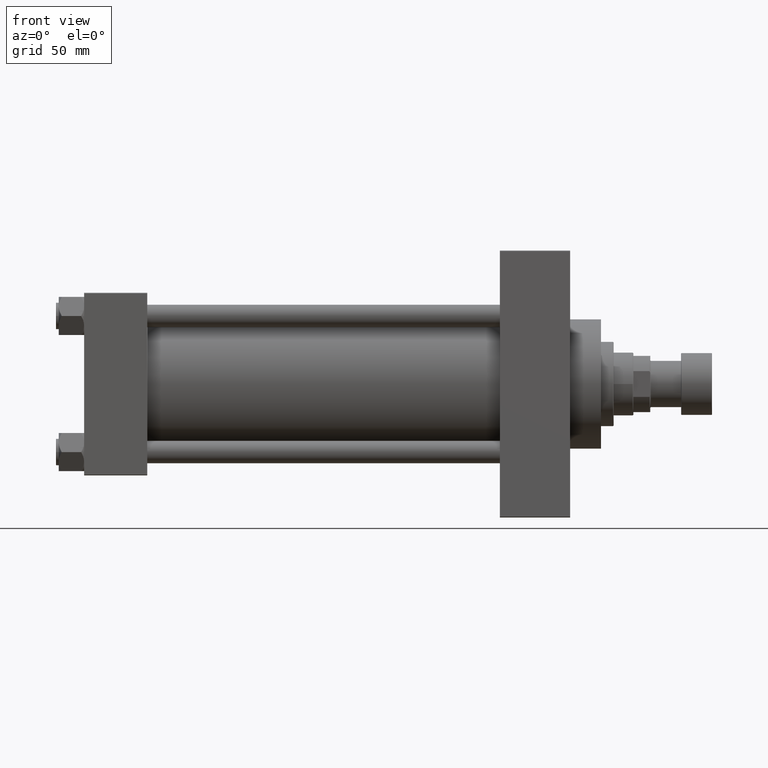
[diagram: clean part render]
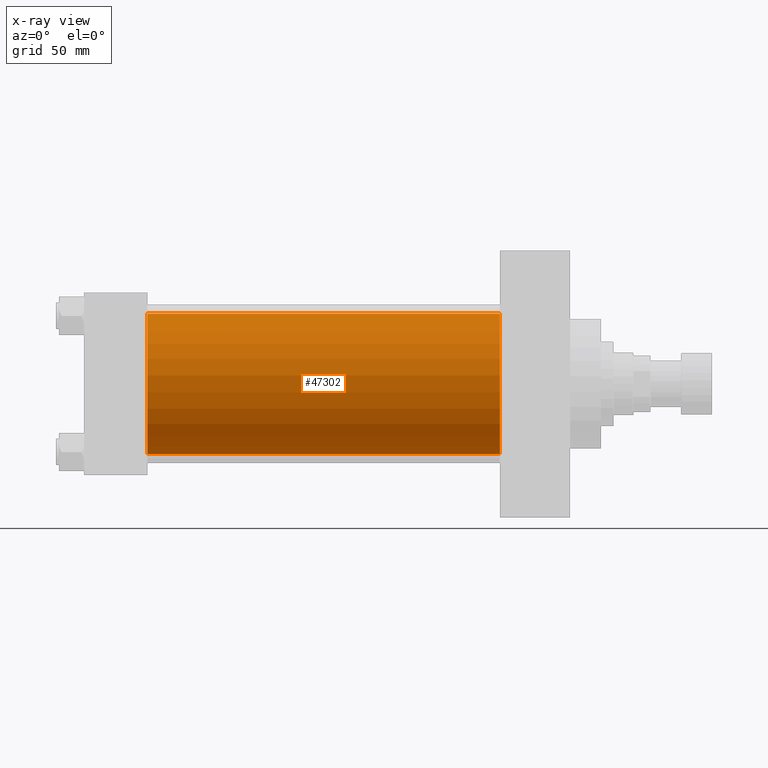
[diagram: x-ray — body ghosted, one internal face saturated and labeled with its STEP entity id]
A machine part, front view, then the same camera in x-ray: the body is ghosted and one INTERNAL B-rep face — a face not visible from any outside direction — is saturated and labeled: STEP entity #47302.
In plain terms, the highlighted cylindrical surface (partial cylindrical patch) has radius 50 mm, axis along (-1, -0, -0).
Its self-contained STEP definition (entity closure, byte-faithful):
#227 = CARTESIAN_POINT ( 'NONE',  ( 296.0000000000000000, -2.602085213965210642E-15, 50.00000000000000000 ) ) ;
#1183 = DIRECTION ( 'NONE',  ( 0.000000000000000000, 0.000000000000000000, 1.000000000000000000 ) ) ;
#1270 = ORIENTED_EDGE ( 'NONE', *, *, #4694, .T. ) ;
#4303 = DIRECTION ( 'NONE',  ( 0.000000000000000000, 0.000000000000000000, -1.000000000000000000 ) ) ;
#4694 = EDGE_CURVE ( 'NONE', #35055, #43186, #33807, .T. ) ;
#6016 = VERTEX_POINT ( 'NONE', #46825 ) ;
#7778 = VECTOR ( 'NONE', #15081, 1000.000000000000000 ) ;
#10832 = CIRCLE ( 'NONE', #22468, 50.00000000000000000 ) ;
#14942 = DIRECTION ( 'NONE',  ( 1.000000000000000000, 0.000000000000000000, 0.000000000000000000 ) ) ;
#15081 = DIRECTION ( 'NONE',  ( -1.000000000000000000, -0.000000000000000000, -0.000000000000000000 ) ) ;
#15092 = ORIENTED_EDGE ( 'NONE', *, *, #20832, .F. ) ;
#15988 = CARTESIAN_POINT ( 'NONE',  ( 296.0000000000000000, 3.521148781771555838E-15, -50.00000000000000000 ) ) ;
#18564 = DIRECTION ( 'NONE',  ( 0.000000000000000000, 0.000000000000000000, -1.000000000000000000 ) ) ;
#18711 = LINE ( 'NONE', #227, #7778 ) ;
#19218 = CARTESIAN_POINT ( 'NONE',  ( 296.0000000000000000, 3.521148781771555838E-15, -50.00000000000000000 ) ) ;
#19454 = DIRECTION ( 'NONE',  ( -1.000000000000000000, -0.000000000000000000, -0.000000000000000000 ) ) ;
#20832 = EDGE_CURVE ( 'NONE', #45284, #43186, #40039, .T. ) ;
#21428 = ORIENTED_EDGE ( 'NONE', *, *, #48121, .F. ) ;
#22468 = AXIS2_PLACEMENT_3D ( 'NONE', #40454, #14942, #18564 ) ;
#23296 = CYLINDRICAL_SURFACE ( 'NONE', #38025, 50.00000000000000000 ) ;
#25577 = CARTESIAN_POINT ( 'NONE',  ( 45.00000000000000000, 3.521148781771555838E-15, -50.00000000000000000 ) ) ;
#26264 = EDGE_LOOP ( 'NONE', ( #26363, #1270, #15092, #21428 ) ) ;
#26363 = ORIENTED_EDGE ( 'NONE', *, *, #31815, .T. ) ;
#26951 = FACE_OUTER_BOUND ( 'NONE', #26264, .T. ) ;
#27292 = VECTOR ( 'NONE', #19454, 1000.000000000000000 ) ;
#28167 = DIRECTION ( 'NONE',  ( 1.000000000000000000, 0.000000000000000000, 0.000000000000000000 ) ) ;
#28915 = CARTESIAN_POINT ( 'NONE',  ( 45.00000000000000000, -2.602085213965210642E-15, 50.00000000000000000 ) ) ;
#31811 = CARTESIAN_POINT ( 'NONE',  ( 45.00000000000000000, -2.602085213965210642E-15, 0.000000000000000000 ) ) ;
#31815 = EDGE_CURVE ( 'NONE', #6016, #35055, #10832, .T. ) ;
#33807 = LINE ( 'NONE', #19218, #27292 ) ;
#34481 = DIRECTION ( 'NONE',  ( -1.000000000000000000, -0.000000000000000000, -0.000000000000000000 ) ) ;
#35055 = VERTEX_POINT ( 'NONE', #15988 ) ;
#38025 = AXIS2_PLACEMENT_3D ( 'NONE', #38131, #34481, #1183 ) ;
#38131 = CARTESIAN_POINT ( 'NONE',  ( 296.0000000000000000, -2.602085213965210642E-15, 0.000000000000000000 ) ) ;
#40039 = CIRCLE ( 'NONE', #41614, 50.00000000000000000 ) ;
#40454 = CARTESIAN_POINT ( 'NONE',  ( 296.0000000000000000, -2.602085213965210642E-15, 0.000000000000000000 ) ) ;
#41614 = AXIS2_PLACEMENT_3D ( 'NONE', #31811, #28167, #4303 ) ;
#43186 = VERTEX_POINT ( 'NONE', #25577 ) ;
#45284 = VERTEX_POINT ( 'NONE', #28915 ) ;
#46825 = CARTESIAN_POINT ( 'NONE',  ( 296.0000000000000000, -2.602085213965210642E-15, 50.00000000000000000 ) ) ;
#47302 = ADVANCED_FACE ( 'NONE', ( #26951 ), #23296, .F. ) ;
#48121 = EDGE_CURVE ( 'NONE', #6016, #45284, #18711, .T. ) ;